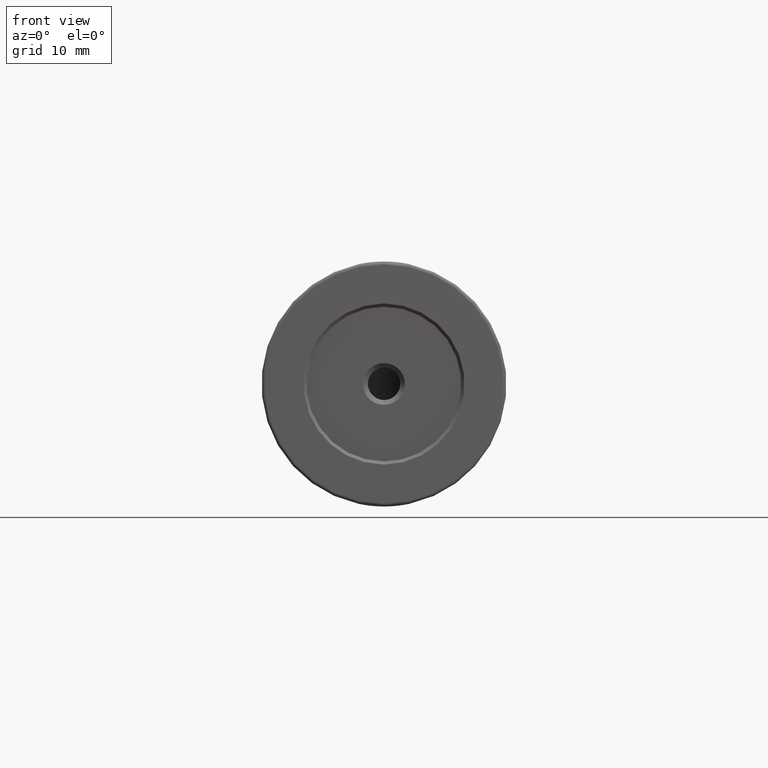
[diagram: clean part render]
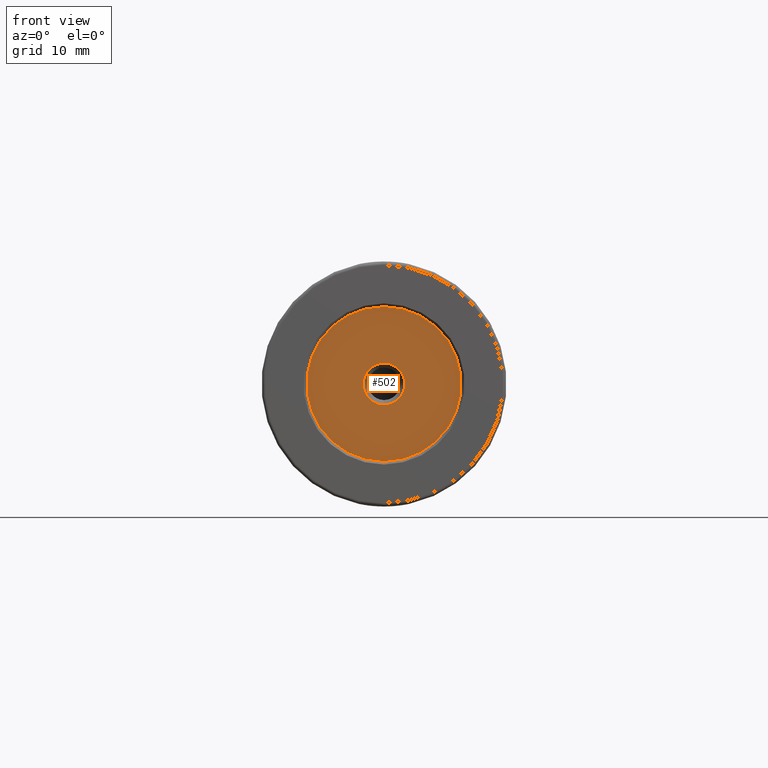
[diagram: same view with one face highlighted and labeled with its STEP entity id]
A machine part, front view. The second image highlights one B-rep face of the part: STEP entity #502.
In plain terms, the highlighted planar face has unit normal (0, -1, 0).
Its self-contained STEP definition (entity closure, byte-faithful):
#24 = ORIENTED_EDGE ( 'NONE', *, *, #274, .T. ) ;
#33 = VERTEX_POINT ( 'NONE', #308 ) ;
#45 = CIRCLE ( 'NONE', #850, 3.249999999999975131 ) ;
#57 = DIRECTION ( 'NONE',  ( -0.0000000000000000000, 1.000000000000000000, -0.0000000000000000000 ) ) ;
#58 = PLANE ( 'NONE',  #192 ) ;
#92 = EDGE_LOOP ( 'NONE', ( #582, #24 ) ) ;
#136 = DIRECTION ( 'NONE',  ( 0.0000000000000000000, 0.0000000000000000000, -1.000000000000000000 ) ) ;
#155 = CIRCLE ( 'NONE', #601, 3.249999999999975131 ) ;
#192 = AXIS2_PLACEMENT_3D ( 'NONE', #214, #209, #832 ) ;
#209 = DIRECTION ( 'NONE',  ( 0.0000000000000000000, -1.000000000000000000, 0.0000000000000000000 ) ) ;
#214 = CARTESIAN_POINT ( 'NONE',  ( -85.22679983354142053, -53.76133999167429067, 400.0000000000000000 ) ) ;
#274 = EDGE_CURVE ( 'NONE', #617, #33, #45, .T. ) ;
#281 = ORIENTED_EDGE ( 'NONE', *, *, #948, .F. ) ;
#308 = CARTESIAN_POINT ( 'NONE',  ( -85.22679983354142053, -53.76133999167429067, 396.7500000000000568 ) ) ;
#367 = CARTESIAN_POINT ( 'NONE',  ( -85.22679983354142053, -53.76133999167429067, 400.0000000000000000 ) ) ;
#373 = FACE_OUTER_BOUND ( 'NONE', #708, .T. ) ;
#422 = AXIS2_PLACEMENT_3D ( 'NONE', #367, #587, #136 ) ;
#500 = CARTESIAN_POINT ( 'NONE',  ( -85.22679983354142053, -53.76133999167429067, 400.0000000000000000 ) ) ;
#502 = ADVANCED_FACE ( 'NONE', ( #912, #373 ), #58, .T. ) ;
#555 = DIRECTION ( 'NONE',  ( 0.0000000000000000000, 0.0000000000000000000, -1.000000000000000000 ) ) ;
#582 = ORIENTED_EDGE ( 'NONE', *, *, #728, .T. ) ;
#587 = DIRECTION ( 'NONE',  ( -0.0000000000000000000, 1.000000000000000000, -0.0000000000000000000 ) ) ;
#601 = AXIS2_PLACEMENT_3D ( 'NONE', #500, #725, #957 ) ;
#615 = CARTESIAN_POINT ( 'NONE',  ( -85.22679983354142053, -53.76133999167429067, 403.2500000000000000 ) ) ;
#617 = VERTEX_POINT ( 'NONE', #615 ) ;
#625 = VERTEX_POINT ( 'NONE', #700 ) ;
#648 = CIRCLE ( 'NONE', #422, 12.00000000000001066 ) ;
#700 = CARTESIAN_POINT ( 'NONE',  ( -85.22679983354142053, -53.76133999167429067, 388.0000000000000000 ) ) ;
#708 = EDGE_LOOP ( 'NONE', ( #712, #281 ) ) ;
#712 = ORIENTED_EDGE ( 'NONE', *, *, #812, .F. ) ;
#725 = DIRECTION ( 'NONE',  ( -0.0000000000000000000, 1.000000000000000000, -0.0000000000000000000 ) ) ;
#728 = EDGE_CURVE ( 'NONE', #33, #617, #155, .T. ) ;
#757 = CARTESIAN_POINT ( 'NONE',  ( -85.22679983354142053, -53.76133999167429067, 400.0000000000000000 ) ) ;
#812 = EDGE_CURVE ( 'NONE', #896, #625, #648, .T. ) ;
#832 = DIRECTION ( 'NONE',  ( 0.0000000000000000000, 0.0000000000000000000, 1.000000000000000000 ) ) ;
#850 = AXIS2_PLACEMENT_3D ( 'NONE', #938, #927, #555 ) ;
#865 = CIRCLE ( 'NONE', #995, 12.00000000000001066 ) ;
#896 = VERTEX_POINT ( 'NONE', #983 ) ;
#912 = FACE_BOUND ( 'NONE', #92, .T. ) ;
#927 = DIRECTION ( 'NONE',  ( -0.0000000000000000000, 1.000000000000000000, -0.0000000000000000000 ) ) ;
#938 = CARTESIAN_POINT ( 'NONE',  ( -85.22679983354142053, -53.76133999167429067, 400.0000000000000000 ) ) ;
#948 = EDGE_CURVE ( 'NONE', #625, #896, #865, .T. ) ;
#957 = DIRECTION ( 'NONE',  ( 0.0000000000000000000, 0.0000000000000000000, -1.000000000000000000 ) ) ;
#983 = CARTESIAN_POINT ( 'NONE',  ( -85.22679983354142053, -53.76133999167429067, 412.0000000000000568 ) ) ;
#994 = DIRECTION ( 'NONE',  ( 0.0000000000000000000, 0.0000000000000000000, -1.000000000000000000 ) ) ;
#995 = AXIS2_PLACEMENT_3D ( 'NONE', #757, #57, #994 ) ;